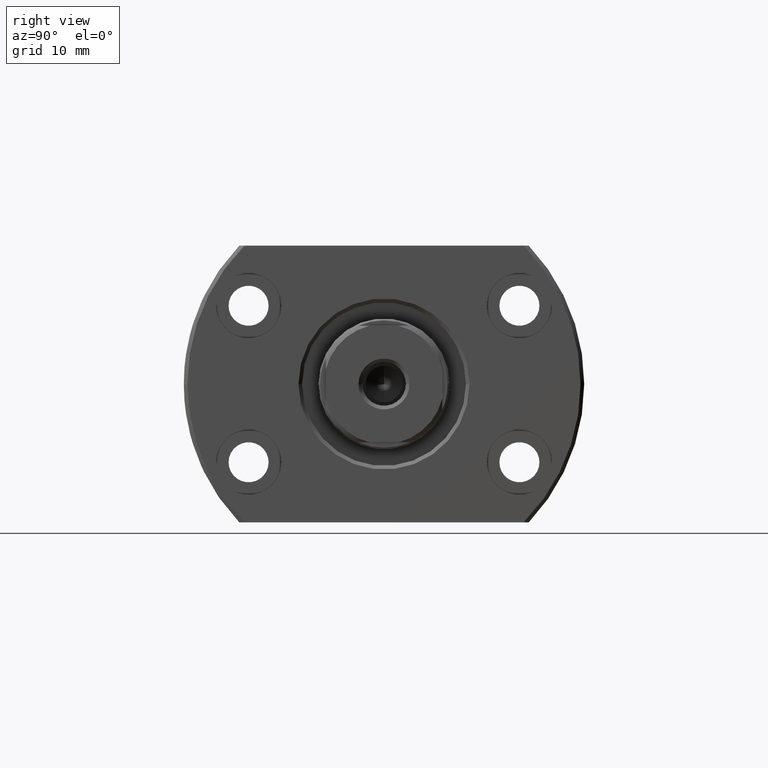
[diagram: clean part render]
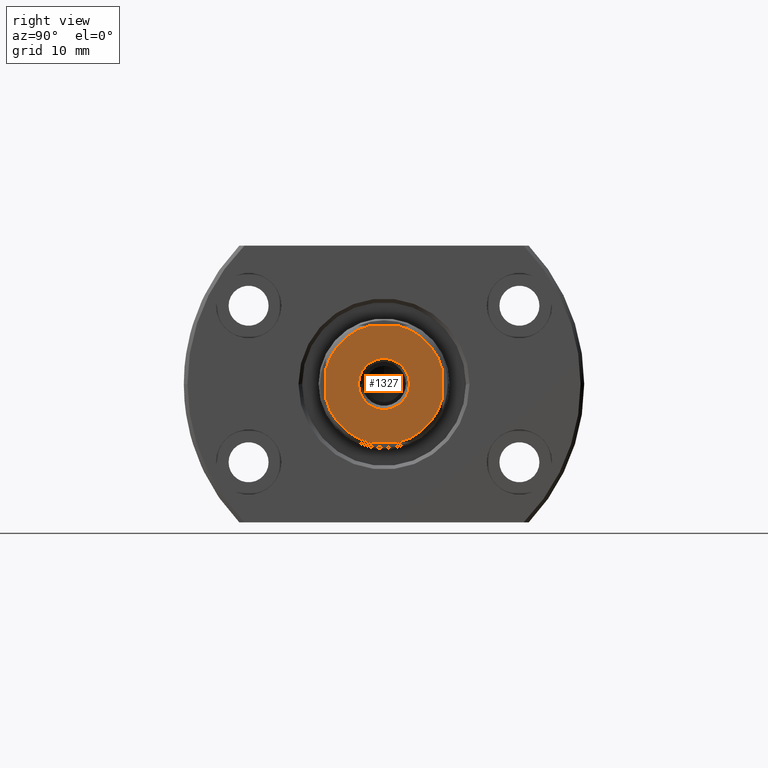
[diagram: same view with one face highlighted and labeled with its STEP entity id]
A machine part, right view. The second image highlights one B-rep face of the part: STEP entity #1327.
In plain terms, the highlighted planar face has unit normal (-1, -0, 0).
Its self-contained STEP definition (entity closure, byte-faithful):
#5 = VERTEX_POINT ( 'NONE', #329 ) ;
#39 = AXIS2_PLACEMENT_3D ( 'NONE', #981, #1486, #337 ) ;
#51 = FACE_OUTER_BOUND ( 'NONE', #913, .T. ) ;
#84 = CIRCLE ( 'NONE', #1497, 8.250000000000008882 ) ;
#189 = VERTEX_POINT ( 'NONE', #904 ) ;
#193 = EDGE_CURVE ( 'NONE', #1573, #5, #2810, .T. ) ;
#203 = DIRECTION ( 'NONE',  ( 0.000000000000000000, 0.000000000000000000, -1.000000000000000000 ) ) ;
#216 = DIRECTION ( 'NONE',  ( 1.000000000000000000, 1.069542322069065801E-17, 0.000000000000000000 ) ) ;
#254 = VECTOR ( 'NONE', #203, 1000.000000000000000 ) ;
#277 = CARTESIAN_POINT ( 'NONE',  ( 75.00000000000000000, 3.499999999998967493, 0.000000000000000000 ) ) ;
#329 = CARTESIAN_POINT ( 'NONE',  ( 74.99999999999985789, -8.000000000001245226, 2.015564437069743420 ) ) ;
#337 = DIRECTION ( 'NONE',  ( 0.000000000000000000, -1.000000000000000000, 0.000000000000000000 ) ) ;
#365 = VECTOR ( 'NONE', #406, 1000.000000000000000 ) ;
#376 = DIRECTION ( 'NONE',  ( 1.069542322069065801E-17, -1.000000000000000000, 0.000000000000000000 ) ) ;
#406 = DIRECTION ( 'NONE',  ( 1.566181886088703027E-14, 1.000000000000000000, 2.447159197013598480E-16 ) ) ;
#427 = EDGE_CURVE ( 'NONE', #2338, #189, #84, .T. ) ;
#461 = CIRCLE ( 'NONE', #1291, 8.250000000000008882 ) ;
#464 = VERTEX_POINT ( 'NONE', #277 ) ;
#474 = CARTESIAN_POINT ( 'NONE',  ( 75.00000000000005684, 3.544361719688217338, -8.000000000000000000 ) ) ;
#475 = ORIENTED_EDGE ( 'NONE', *, *, #427, .T. ) ;
#536 = ORIENTED_EDGE ( 'NONE', *, *, #2866, .F. ) ;
#558 = CARTESIAN_POINT ( 'NONE',  ( 74.99999999999997158, -2.015564437074671478, -8.000000000000001776 ) ) ;
#634 = CARTESIAN_POINT ( 'NONE',  ( 75.00000000000000000, 8.021567415517992473E-16, 0.000000000000000000 ) ) ;
#685 = ORIENTED_EDGE ( 'NONE', *, *, #2828, .F. ) ;
#774 = DIRECTION ( 'NONE',  ( 0.000000000000000000, -1.000000000000000000, 0.000000000000000000 ) ) ;
#801 = CARTESIAN_POINT ( 'NONE',  ( 75.00000000000002842, 2.015564437074672366, 8.000000000000001776 ) ) ;
#854 = DIRECTION ( 'NONE',  ( 0.000000000000000000, -1.000000000000000000, 0.000000000000000000 ) ) ;
#870 = AXIS2_PLACEMENT_3D ( 'NONE', #2986, #216, #2762 ) ;
#897 = PLANE ( 'NONE',  #1397 ) ;
#904 = CARTESIAN_POINT ( 'NONE',  ( 75.00000000000014211, 7.999999999998758327, -2.015564437079602200 ) ) ;
#913 = EDGE_LOOP ( 'NONE', ( #685, #475, #1478, #2305, #536, #2841, #2560, #2074 ) ) ;
#926 = CIRCLE ( 'NONE', #2346, 3.500000000000215827 ) ;
#930 = CARTESIAN_POINT ( 'NONE',  ( 75.00000000000000000, -8.000000000001243450, -2.015564437069737203 ) ) ;
#932 = VERTEX_POINT ( 'NONE', #801 ) ;
#961 = CARTESIAN_POINT ( 'NONE',  ( 75.00000000000000000, 7.999999999998758327, 2.015564437079602200 ) ) ;
#981 = CARTESIAN_POINT ( 'NONE',  ( 75.00000000000000000, -1.242948599619172861E-12, 0.000000000000000000 ) ) ;
#1020 = CARTESIAN_POINT ( 'NONE',  ( 75.00000000000000000, -1.242948599619172861E-12, 0.000000000000000000 ) ) ;
#1217 = VERTEX_POINT ( 'NONE', #558 ) ;
#1287 = FACE_BOUND ( 'NONE', #2660, .T. ) ;
#1291 = AXIS2_PLACEMENT_3D ( 'NONE', #3030, #2575, #854 ) ;
#1314 = CARTESIAN_POINT ( 'NONE',  ( 75.00000000000000000, -3.500000000001580958, 4.286263797016150254E-16 ) ) ;
#1327 = ADVANCED_FACE ( 'NONE', ( #1287, #51 ), #897, .F. ) ;
#1390 = CARTESIAN_POINT ( 'NONE',  ( 74.99999999999994316, -3.544361719690702017, 8.000000000000000000 ) ) ;
#1397 = AXIS2_PLACEMENT_3D ( 'NONE', #1409, #1655, #376 ) ;
#1409 = CARTESIAN_POINT ( 'NONE',  ( 75.00000000000000000, -5.004653406798891484E-34, 0.000000000000000000 ) ) ;
#1478 = ORIENTED_EDGE ( 'NONE', *, *, #2189, .F. ) ;
#1486 = DIRECTION ( 'NONE',  ( -1.000000000000000000, -1.069542322069065801E-17, -0.000000000000000000 ) ) ;
#1497 = AXIS2_PLACEMENT_3D ( 'NONE', #2492, #2121, #2344 ) ;
#1516 = ORIENTED_EDGE ( 'NONE', *, *, #1896, .T. ) ;
#1543 = EDGE_CURVE ( 'NONE', #2794, #1217, #1976, .T. ) ;
#1573 = VERTEX_POINT ( 'NONE', #2949 ) ;
#1636 = DIRECTION ( 'NONE',  ( 1.000000000000000000, 1.069542322069065801E-17, 0.000000000000000000 ) ) ;
#1655 = DIRECTION ( 'NONE',  ( -1.000000000000000000, -1.069542322069065801E-17, 0.000000000000000000 ) ) ;
#1658 = LINE ( 'NONE', #474, #3167 ) ;
#1697 = EDGE_CURVE ( 'NONE', #1993, #464, #2759, .T. ) ;
#1710 = LINE ( 'NONE', #2942, #254 ) ;
#1824 = VECTOR ( 'NONE', #1955, 1000.000000000000000 ) ;
#1896 = EDGE_CURVE ( 'NONE', #464, #1993, #926, .T. ) ;
#1918 = AXIS2_PLACEMENT_3D ( 'NONE', #634, #1636, #2619 ) ;
#1955 = DIRECTION ( 'NONE',  ( 0.000000000000000000, -2.447159197013598480E-16, 1.000000000000000000 ) ) ;
#1972 = EDGE_CURVE ( 'NONE', #2945, #932, #461, .T. ) ;
#1976 = CIRCLE ( 'NONE', #870, 8.250000000000008882 ) ;
#1993 = VERTEX_POINT ( 'NONE', #1314 ) ;
#2074 = ORIENTED_EDGE ( 'NONE', *, *, #1543, .T. ) ;
#2121 = DIRECTION ( 'NONE',  ( 1.000000000000000000, 1.069542322069065801E-17, 0.000000000000000000 ) ) ;
#2189 = EDGE_CURVE ( 'NONE', #2945, #189, #1710, .T. ) ;
#2199 = LINE ( 'NONE', #2381, #1824 ) ;
#2305 = ORIENTED_EDGE ( 'NONE', *, *, #1972, .T. ) ;
#2338 = VERTEX_POINT ( 'NONE', #3180 ) ;
#2344 = DIRECTION ( 'NONE',  ( 0.000000000000000000, -1.000000000000000000, 8.881784197001252323E-16 ) ) ;
#2346 = AXIS2_PLACEMENT_3D ( 'NONE', #1020, #2776, #774 ) ;
#2381 = CARTESIAN_POINT ( 'NONE',  ( 74.99999999999985789, -8.000000000001243450, -3.544361719689461232 ) ) ;
#2469 = EDGE_CURVE ( 'NONE', #2794, #5, #2199, .T. ) ;
#2492 = CARTESIAN_POINT ( 'NONE',  ( 75.00000000000000000, 8.021567415517992473E-16, 0.000000000000000000 ) ) ;
#2560 = ORIENTED_EDGE ( 'NONE', *, *, #2469, .F. ) ;
#2575 = DIRECTION ( 'NONE',  ( 1.000000000000000000, 1.069542322069065801E-17, 0.000000000000000000 ) ) ;
#2619 = DIRECTION ( 'NONE',  ( 0.000000000000000000, -1.000000000000000000, 0.000000000000000000 ) ) ;
#2631 = LINE ( 'NONE', #1390, #365 ) ;
#2648 = DIRECTION ( 'NONE',  ( -1.566181886088703027E-14, -1.000000000000000000, -2.447159197013598480E-16 ) ) ;
#2660 = EDGE_LOOP ( 'NONE', ( #1516, #3104 ) ) ;
#2759 = CIRCLE ( 'NONE', #39, 3.500000000000215827 ) ;
#2762 = DIRECTION ( 'NONE',  ( 0.000000000000000000, -1.000000000000000000, 0.000000000000000000 ) ) ;
#2776 = DIRECTION ( 'NONE',  ( -1.000000000000000000, -1.069542322069065801E-17, -0.000000000000000000 ) ) ;
#2794 = VERTEX_POINT ( 'NONE', #930 ) ;
#2810 = CIRCLE ( 'NONE', #1918, 8.250000000000010658 ) ;
#2828 = EDGE_CURVE ( 'NONE', #2338, #1217, #1658, .T. ) ;
#2841 = ORIENTED_EDGE ( 'NONE', *, *, #193, .T. ) ;
#2866 = EDGE_CURVE ( 'NONE', #1573, #932, #2631, .T. ) ;
#2942 = CARTESIAN_POINT ( 'NONE',  ( 75.00000000000014211, 7.999999999998758327, 3.544361719689459900 ) ) ;
#2945 = VERTEX_POINT ( 'NONE', #961 ) ;
#2949 = CARTESIAN_POINT ( 'NONE',  ( 74.99999999999997158, -2.015564437074678139, 8.000000000000001776 ) ) ;
#2986 = CARTESIAN_POINT ( 'NONE',  ( 75.00000000000000000, 8.021567415517992473E-16, 0.000000000000000000 ) ) ;
#3030 = CARTESIAN_POINT ( 'NONE',  ( 75.00000000000000000, 8.021567415517992473E-16, 0.000000000000000000 ) ) ;
#3104 = ORIENTED_EDGE ( 'NONE', *, *, #1697, .T. ) ;
#3167 = VECTOR ( 'NONE', #2648, 1000.000000000000000 ) ;
#3180 = CARTESIAN_POINT ( 'NONE',  ( 75.00000000000002842, 2.015564437074676363, -8.000000000000000000 ) ) ;